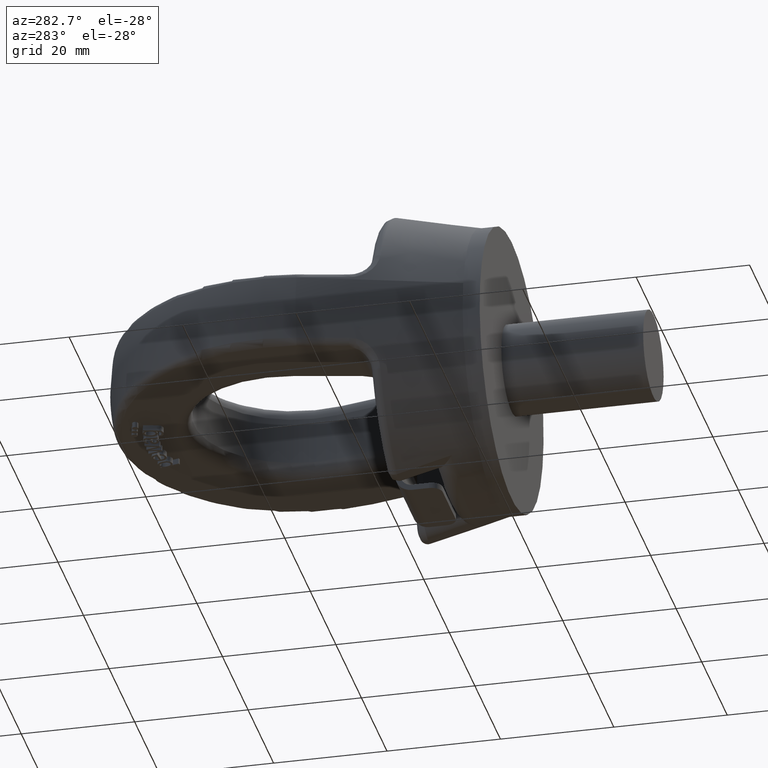
[diagram: clean part render]
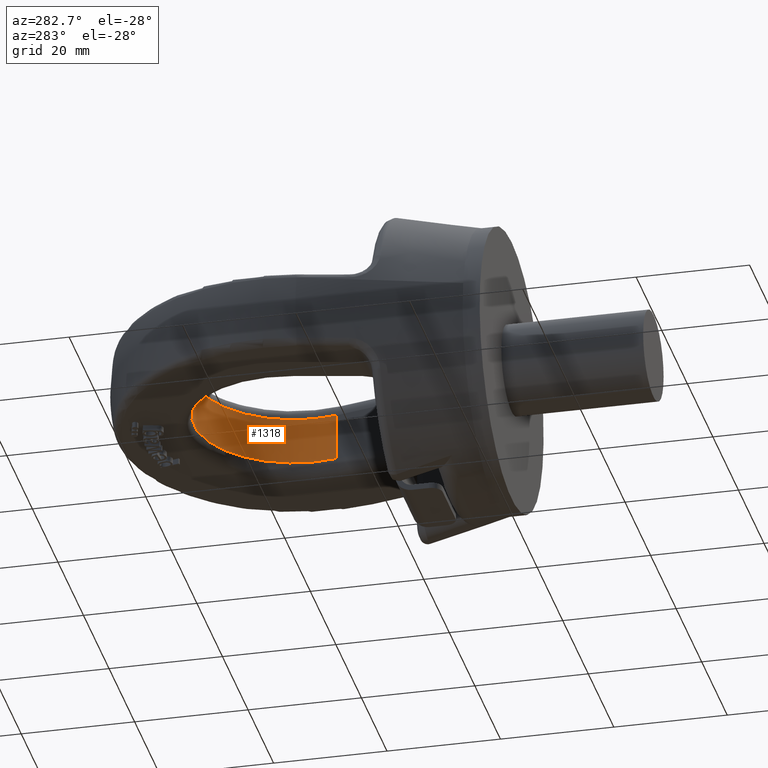
[diagram: same view with one face highlighted and labeled with its STEP entity id]
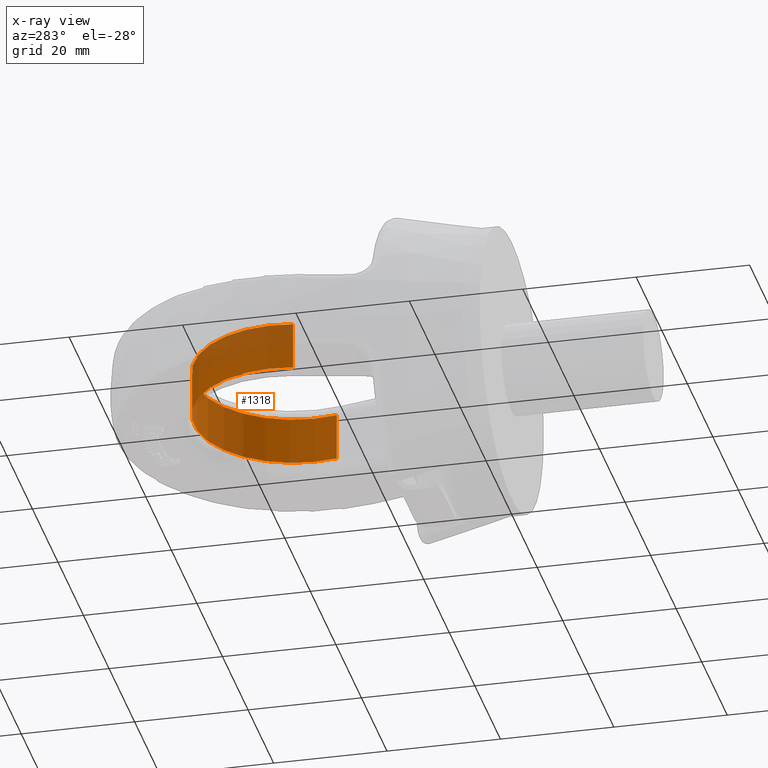
[diagram: x-ray of the same camera — body ghosted, the highlighted face saturated]
A machine part, auxiliary view. The second image highlights one B-rep face of the part: STEP entity #1318.
The next image is the same camera in x-ray: the body ghosted, the highlighted face saturated — about 24% of this face is hidden behind the body in this view.
In plain terms, the highlighted cylindrical surface (partial cylindrical patch) has radius 17.5 mm, axis along (0, 0, -1).
Its self-contained STEP definition (entity closure, byte-faithful):
#1056=CYLINDRICAL_SURFACE('',#5149,17.5);
#1097=FACE_OUTER_BOUND('',#1831,.T.);
#1318=ADVANCED_FACE('',(#1097),#1056,.F.);
#1687=CIRCLE('',#5147,17.5);
#1688=CIRCLE('',#5148,17.5);
#1831=EDGE_LOOP('',(#2835,#2836,#2837,#2838));
#2149=LINE('',#6861,#2429);
#2150=LINE('',#6866,#2430);
#2429=VECTOR('',#5507,1.);
#2430=VECTOR('',#5510,1.);
#2835=ORIENTED_EDGE('',*,*,#4395,.T.);
#2836=ORIENTED_EDGE('',*,*,#4396,.T.);
#2837=ORIENTED_EDGE('',*,*,#4397,.F.);
#2838=ORIENTED_EDGE('',*,*,#4398,.T.);
#4003=VERTEX_POINT('',#6862);
#4004=VERTEX_POINT('',#6863);
#4005=VERTEX_POINT('',#6865);
#4006=VERTEX_POINT('',#6867);
#4395=EDGE_CURVE('',#4003,#4004,#2149,.T.);
#4396=EDGE_CURVE('',#4004,#4005,#1687,.T.);
#4397=EDGE_CURVE('',#4006,#4005,#2150,.T.);
#4398=EDGE_CURVE('',#4006,#4003,#1688,.T.);
#5147=AXIS2_PLACEMENT_3D('',#6864,#5508,#5509);
#5148=AXIS2_PLACEMENT_3D('',#6868,#5511,#5512);
#5149=AXIS2_PLACEMENT_3D('',#6869,#5513,#5514);
#5507=DIRECTION('',(0.,0.,1.));
#5508=DIRECTION('',(0.,1.27971403965502E-16,1.));
#5509=DIRECTION('',(0.,1.,-1.48690583655155E-16));
#5510=DIRECTION('',(0.,0.,1.));
#5511=DIRECTION('',(2.34291072916505E-15,1.27971403965502E-16,-1.));
#5512=DIRECTION('',(-2.64127535230249E-31,1.,1.48690583655155E-16));
#5513=DIRECTION('',(0.,0.,-1.));
#5514=DIRECTION('',(-1.,0.,0.));
#6861=CARTESIAN_POINT('',(17.0829092607675,34.7020780434054,35.2));
#6862=CARTESIAN_POINT('',(17.0829092607675,34.7020780434054,-4.19999999999997));
#6863=CARTESIAN_POINT('',(17.0829092607675,34.7020780434054,4.20000000000001));
#6864=CARTESIAN_POINT('',(0.,38.5,4.20000000000001));
#6865=CARTESIAN_POINT('',(-17.0829092607675,34.7020780434054,4.20000000000001));
#6866=CARTESIAN_POINT('',(-17.0829092607675,34.7020780434054,35.2));
#6867=CARTESIAN_POINT('',(-17.0829092607675,34.7020780434054,-4.20000000000005));
#6868=CARTESIAN_POINT('',(9.84022506249322E-15,38.5,-4.20000000000001));
#6869=CARTESIAN_POINT('',(0.,38.5,35.2));